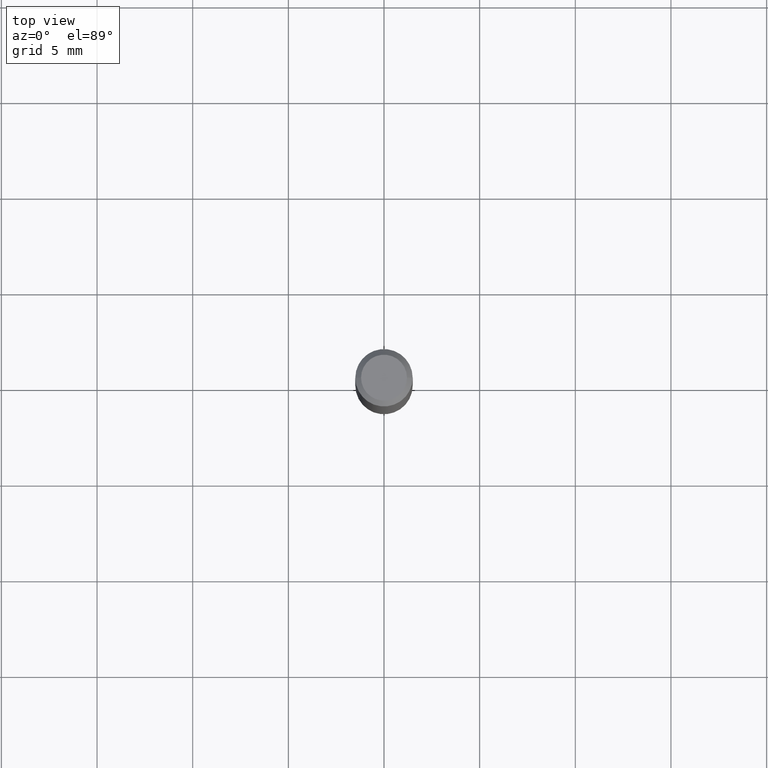
[diagram: clean part render]
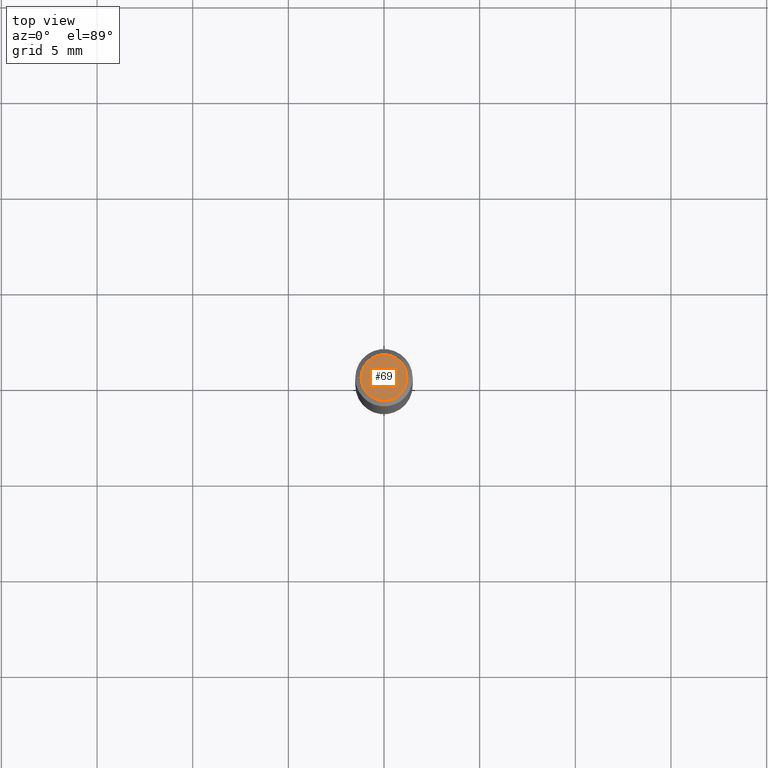
[diagram: same view with one face highlighted and labeled with its STEP entity id]
A machine part, top view. The second image highlights one B-rep face of the part: STEP entity #69.
In plain terms, the highlighted planar face has unit normal (0, -0, -1).
Its self-contained STEP definition (entity closure, byte-faithful):
#8 = CIRCLE ( 'NONE', #239, 0.04724000000000000421 ) ;
#19 = AXIS2_PLACEMENT_3D ( 'NONE', #329, #406, #371 ) ;
#21 = ORIENTED_EDGE ( 'NONE', *, *, #224, .T. ) ;
#31 = DIRECTION ( 'NONE',  ( 2.438088387897960049E-29, -3.491481338843145188E-15, -1.000000000000000000 ) ) ;
#69 = ADVANCED_FACE ( 'NONE', ( #484 ), #328, .F. ) ;
#76 = CARTESIAN_POINT ( 'NONE',  ( -0.04724000000000000421, 3.504923541997677355E-16, -3.380025165670481712E-19 ) ) ;
#131 = VERTEX_POINT ( 'NONE', #466 ) ;
#161 = CIRCLE ( 'NONE', #19, 0.04724000000000000421 ) ;
#214 = DIRECTION ( 'NONE',  ( -1.000000000000000000, 6.982962677686265922E-15, -4.876176775795935793E-29 ) ) ;
#221 = CARTESIAN_POINT ( 'NONE',  ( 8.265746106709734507E-48, -1.180129479067563789E-33, -3.380025165646692144E-19 ) ) ;
#224 = EDGE_CURVE ( 'NONE', #225, #131, #8, .T. ) ;
#225 = VERTEX_POINT ( 'NONE', #76 ) ;
#239 = AXIS2_PLACEMENT_3D ( 'NONE', #221, #261, #462 ) ;
#261 = DIRECTION ( 'NONE',  ( -2.445468806185136597E-29, 3.491481338843145583E-15, 1.000000000000000000 ) ) ;
#328 = PLANE ( 'NONE',  #402 ) ;
#329 = CARTESIAN_POINT ( 'NONE',  ( 8.265746106709734507E-48, -1.180129479067563789E-33, -3.380025165646692144E-19 ) ) ;
#363 = EDGE_CURVE ( 'NONE', #131, #225, #161, .T. ) ;
#371 = DIRECTION ( 'NONE',  ( 1.000000000000000000, -6.982962677686266711E-15, 4.876185090822587894E-29 ) ) ;
#383 = EDGE_LOOP ( 'NONE', ( #21, #440 ) ) ;
#402 = AXIS2_PLACEMENT_3D ( 'NONE', #407, #31, #214 ) ;
#406 = DIRECTION ( 'NONE',  ( -2.445468806185136597E-29, 3.491481338843145583E-15, 1.000000000000000000 ) ) ;
#407 = CARTESIAN_POINT ( 'NONE',  ( 4.132873053354867254E-48, -5.900647395337818946E-34, -1.690012582823346072E-19 ) ) ;
#440 = ORIENTED_EDGE ( 'NONE', *, *, #363, .T. ) ;
#462 = DIRECTION ( 'NONE',  ( 1.000000000000000000, -6.982962677686266711E-15, 4.876185090822587894E-29 ) ) ;
#466 = CARTESIAN_POINT ( 'NONE',  ( 0.04724000000000000421, -3.852183633974369345E-16, -3.380025165621689721E-19 ) ) ;
#484 = FACE_OUTER_BOUND ( 'NONE', #383, .T. ) ;